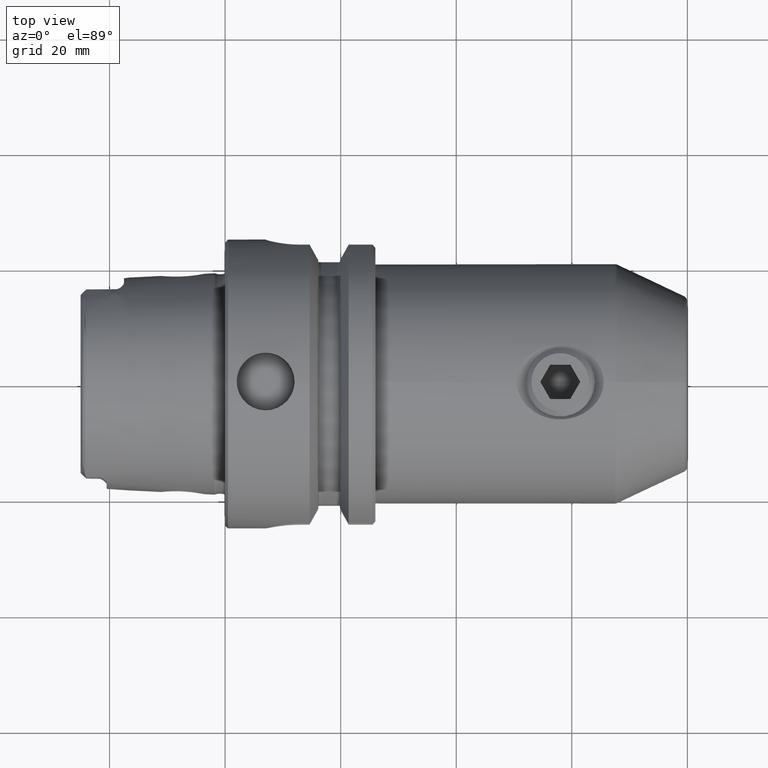
[diagram: clean part render]
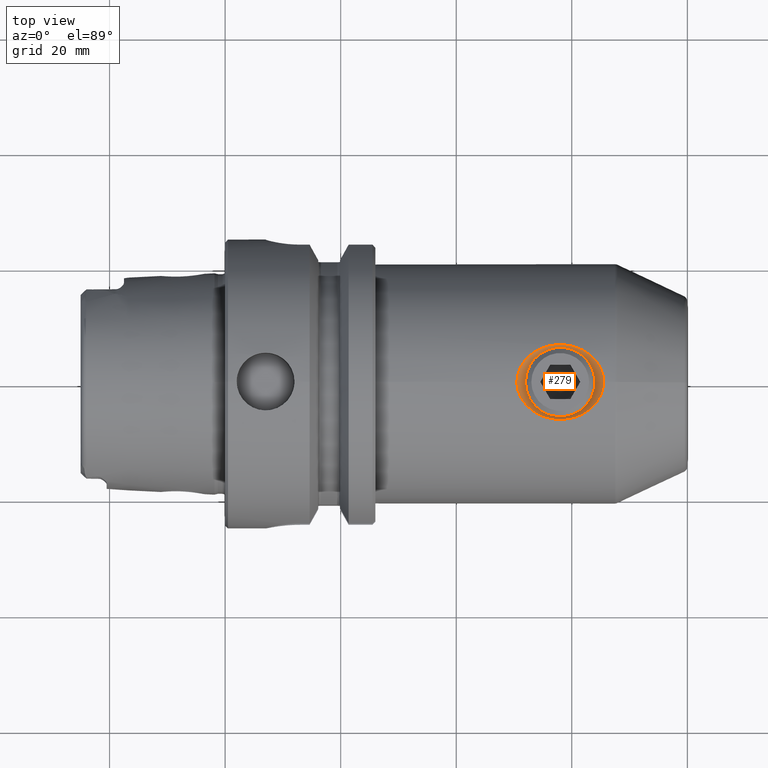
[diagram: same view with one face highlighted and labeled with its STEP entity id]
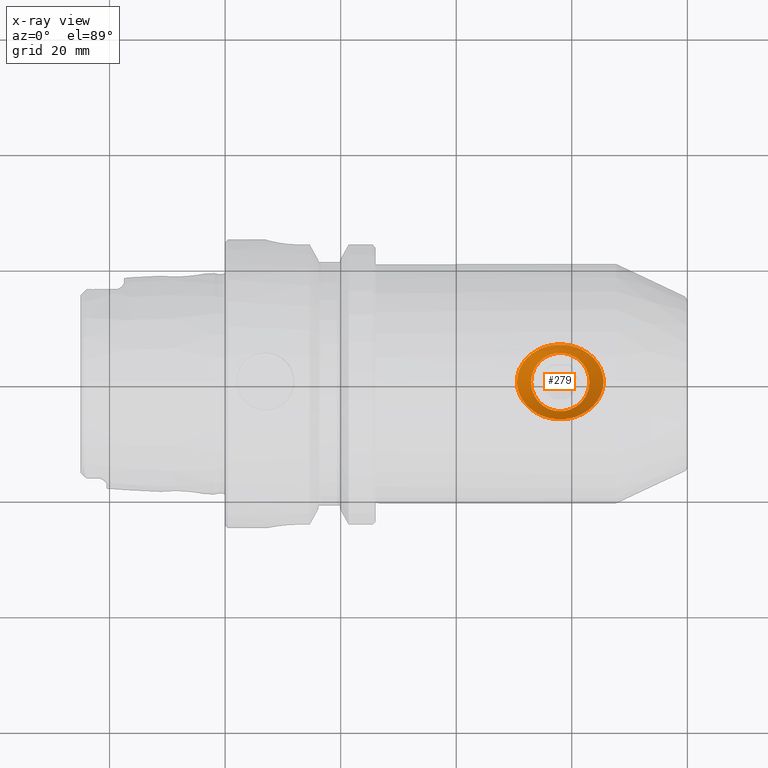
[diagram: x-ray of the same camera — body ghosted, the highlighted face saturated]
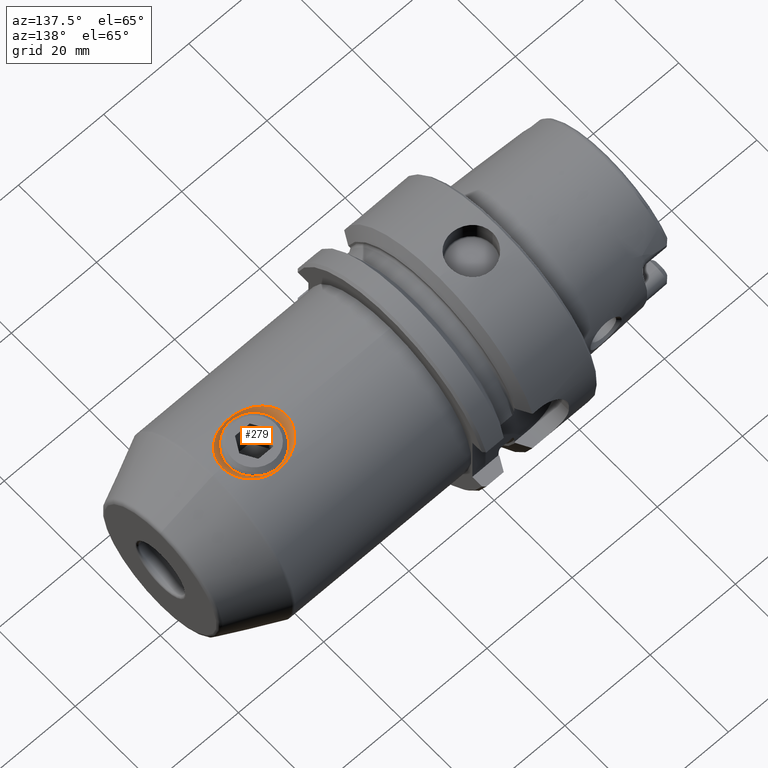
[diagram: same view with one face highlighted and labeled with its STEP entity id]
A machine part, top view. The second image highlights one B-rep face of the part: STEP entity #279.
The next image is the same camera in x-ray: the body ghosted, the highlighted face saturated — about 0% of this face is hidden behind the body in this view.
A second angle (auxiliary view) of the same face is appended — the face is thin or edge-on in the first view.
In plain terms, the highlighted conical surface has half-angle 45 deg.
Its self-contained STEP definition (entity closure, byte-faithful):
#279 = ADVANCED_FACE( '', ( #676, #677 ), #678, .F. );
#676 = FACE_OUTER_BOUND( '', #1203, .T. );
#677 = FACE_BOUND( '', #1204, .T. );
#678 = CONICAL_SURFACE( '', #1205, 707.106781186547, 0.785398163397448 );
#1203 = EDGE_LOOP( '', ( #1970 ) );
#1204 = EDGE_LOOP( '', ( #1971 ) );
#1205 = AXIS2_PLACEMENT_3D( '', #1972, #1973, #1974 );
#1970 = ORIENTED_EDGE( '', *, *, #3060, .F. );
#1971 = ORIENTED_EDGE( '', *, *, #3055, .F. );
#1972 = CARTESIAN_POINT( '', ( 58.0000000000000, 0.000000000000000, 720.356781186548 ) );
#1973 = DIRECTION( '', ( -0.000000000000000, -0.000000000000000, 1.00000000000000 ) );
#1974 = DIRECTION( '', ( 1.00000000000000, 0.000000000000000, 0.000000000000000 ) );
#3055 = EDGE_CURVE( '', #3703, #3703, #3704, .T. );
#3060 = EDGE_CURVE( '', #3711, #3711, #3712, .T. );
#3703 = VERTEX_POINT( '', #5338 );
#3704 = CIRCLE( '', #5339, 5.05300000000000 );
#3711 = VERTEX_POINT( '', #5346 );
#3712 = B_SPLINE_CURVE_WITH_KNOTS( '', 3, ( #5347, #5348, #5349, #5350, #5351, #5352, #5353, #5354, #5355, #5356, #5357, #5358, #5359, #5360, #5361, #5362, #5363, #5364, #5365, #5366, #5367, #5368, #5369, #5370, #5371, #5372, #5373, #5374, #5375, #5376, #5377, #5378, #5379, #5380, #5381, #5382, #5383, #5384, #5385, #5386, #5387, #5388, #5389, #5390, #5391, #5392, #5393, #5394, #5395, #5396, #5397, #5398, #5399, #5400, #5401, #5402, #5403, #5404, #5405, #5406, #5407, #5408, #5409, #5410, #5411, #5412, #5413, #5414, #5415, #5416, #5417, #5418, #5419, #5420, #5421, #5422, #5423, #5424, #5425, #5426 ), .UNSPECIFIED., .T., .F., ( 2, 2, 2, 2, 2, 2, 2, 2, 2, 2, 2, 2, 2, 2, 2, 2, 2, 2, 2, 2, 2, 2, 2, 2, 2, 2, 2, 2, 2, 2, 2, 2, 2, 2, 2, 2, 2, 2, 2, 2, 2, 2 ), ( -0.00136961091954119, 0.000000000000000, 0.00136961091954115, 0.00205441637931173, 0.00273922183908231, 0.00410883275862346, 0.00479363821839404, 0.00547844367816461, 0.00616324913793518, 0.00684805459770575, 0.00821766551724690, 0.00890247097701748, 0.00958727643678805, 0.0109568873563292, 0.0123264982758704, 0.0136961091954115, 0.0150657201149527, 0.0164353310344938, 0.0178049419540350, 0.0191745528735761, 0.0205441637931173, 0.0219137747126584, 0.0232833856321996, 0.0246529965517408, 0.0260226074712819, 0.0267074129310525, 0.0273922183908231, 0.0287618293103643, 0.0294466347701349, 0.0301314402299054, 0.0315010511494466, 0.0328706620689878, 0.0342402729885290, 0.0356098839080701, 0.0369794948276113, 0.0383491057471525, 0.0397187166666936, 0.0404035221264642, 0.0410883275862348, 0.0424579385057760, 0.0438275494253171, 0.0451971603448583 ), .UNSPECIFIED. );
#5338 = CARTESIAN_POINT( '', ( 63.0530000000000, 0.000000000000000, 18.3030000000000 ) );
#5339 = AXIS2_PLACEMENT_3D( '', #6343, #6344, #6345 );
#5346 = CARTESIAN_POINT( '', ( 53.6023979690213, -5.22701619019047, 20.0808565989474 ) );
#5347 = CARTESIAN_POINT( '', ( 53.9908035075223, -5.47084688845429, 20.0173878419643 ) );
#5348 = CARTESIAN_POINT( '', ( 53.2139924305203, -4.98318549192665, 20.1443253559304 ) );
#5349 = CARTESIAN_POINT( '', ( 52.8536311028944, -4.70867990123113, 20.2111172415112 ) );
#5350 = CARTESIAN_POINT( '', ( 52.3560034631978, -4.24879678078246, 20.3109535117435 ) );
#5351 = CARTESIAN_POINT( '', ( 52.1973325527191, -4.08742305407536, 20.3441750660991 ) );
#5352 = CARTESIAN_POINT( '', ( 51.8952860767660, -3.74731959062046, 20.4095585995589 ) );
#5353 = CARTESIAN_POINT( '', ( 51.7511812268098, -3.56746988144553, 20.4418946978389 ) );
#5354 = CARTESIAN_POINT( '', ( 51.3519612162404, -3.01056874582265, 20.5338884918784 ) );
#5355 = CARTESIAN_POINT( '', ( 51.1278151734844, -2.61535336515093, 20.5888898364937 ) );
#5356 = CARTESIAN_POINT( '', ( 50.8605052508132, -1.98259706571735, 20.6561564274668 ) );
#5357 = CARTESIAN_POINT( '', ( 50.7826759598934, -1.76346200529723, 20.6761123820173 ) );
#5358 = CARTESIAN_POINT( '', ( 50.6555710421010, -1.32232257929989, 20.7090049126994 ) );
#5359 = CARTESIAN_POINT( '', ( 50.6057527154156, -1.09949349349797, 20.7220745834183 ) );
#5360 = CARTESIAN_POINT( '', ( 50.5336538999921, -0.649289782128521, 20.7410627442718 ) );
#5361 = CARTESIAN_POINT( '', ( 50.5113709215926, -0.421915578754187, 20.7469821597778 ) );
#5362 = CARTESIAN_POINT( '', ( 50.4953350644945, 0.0375491796268607, 20.7512378318221 ) );
#5363 = CARTESIAN_POINT( '', ( 50.5018709560803, 0.271138188603694, 20.7494966941886 ) );
#5364 = CARTESIAN_POINT( '', ( 50.5645605699332, 0.959168173958619, 20.7328968630027 ) );
#5365 = CARTESIAN_POINT( '', ( 50.6624173881850, 1.40599944000037, 20.7069277102235 ) );
#5366 = CARTESIAN_POINT( '', ( 50.8899245661133, 2.05928993302832, 20.6487196304554 ) );
#5367 = CARTESIAN_POINT( '', ( 50.9789035145043, 2.27253655656794, 20.6262195619981 ) );
#5368 = CARTESIAN_POINT( '', ( 51.1786019123614, 2.68360635828586, 20.5767736230552 ) );
#5369 = CARTESIAN_POINT( '', ( 51.2897066732525, 2.88255952699384, 20.5497282081340 ) );
#5370 = CARTESIAN_POINT( '', ( 51.6552098408448, 3.46074787577344, 20.4630799138276 ) );
#5371 = CARTESIAN_POINT( '', ( 51.9436479120796, 3.82239076883947, 20.3975993629331 ) );
#5372 = CARTESIAN_POINT( '', ( 52.5775971129203, 4.47301080033802, 20.2648687471816 ) );
#5373 = CARTESIAN_POINT( '', ( 52.9268494726237, 4.76717154669403, 20.1967631608760 ) );
#5374 = CARTESIAN_POINT( '', ( 53.6781987360941, 5.29023505894311, 20.0661052462419 ) );
#5375 = CARTESIAN_POINT( '', ( 54.0732964302577, 5.51468925057683, 20.0047488322110 ) );
#5376 = CARTESIAN_POINT( '', ( 54.8999312100158, 5.89576345411249, 19.8957720801035 ) );
#5377 = CARTESIAN_POINT( '', ( 55.3355870833833, 6.05317415880750, 19.8478529441436 ) );
#5378 = CARTESIAN_POINT( '', ( 56.2197638152849, 6.29230542168562, 19.7733425694654 ) );
#5379 = CARTESIAN_POINT( '', ( 56.6685340479698, 6.37502426738812, 19.7464929553556 ) );
#5380 = CARTESIAN_POINT( '', ( 57.5792702444055, 6.46855087367409, 19.7160535615114 ) );
#5381 = CARTESIAN_POINT( '', ( 58.0453428316858, 6.47875492737816, 19.7126617987928 ) );
#5382 = CARTESIAN_POINT( '', ( 58.9611551635725, 6.42497014064288, 19.7302574563653 ) );
#5383 = CARTESIAN_POINT( '', ( 59.4129644591762, 6.36187398644685, 19.7509478787343 ) );
#5384 = CARTESIAN_POINT( '', ( 60.3044478157375, 6.16296222481584, 19.8139163050468 ) );
#5385 = CARTESIAN_POINT( '', ( 60.7479281989323, 6.02523280991412, 19.8567619463598 ) );
#5386 = CARTESIAN_POINT( '', ( 61.5926593147357, 5.68239428275065, 19.9575755196725 ) );
#5387 = CARTESIAN_POINT( '', ( 61.9963183665174, 5.47751326736457, 20.0155155259337 ) );
#5388 = CARTESIAN_POINT( '', ( 62.7653087985852, 4.99753714094481, 20.1407208383395 ) );
#5389 = CARTESIAN_POINT( '', ( 63.1340864660355, 4.71874761080355, 20.2087741120696 ) );
#5390 = CARTESIAN_POINT( '', ( 63.8009394297168, 4.10500072370203, 20.3423228561914 ) );
#5391 = CARTESIAN_POINT( '', ( 64.1017296404000, 3.76951867300613, 20.4081302995114 ) );
#5392 = CARTESIAN_POINT( '', ( 64.6325517218793, 3.03513924338131, 20.5301968602657 ) );
#5393 = CARTESIAN_POINT( '', ( 64.8640809993165, 2.63081187880896, 20.5868913971869 ) );
#5394 = CARTESIAN_POINT( '', ( 65.1327963627436, 2.00020515907282, 20.6544516135610 ) );
#5395 = CARTESIAN_POINT( '', ( 65.2100374574065, 1.78521126373541, 20.6742402140648 ) );
#5396 = CARTESIAN_POINT( '', ( 65.3387697016277, 1.34516280143676, 20.7075282137356 ) );
#5397 = CARTESIAN_POINT( '', ( 65.3904811442451, 1.11865547884599, 20.7210857291726 ) );
#5398 = CARTESIAN_POINT( '', ( 65.5022583203388, 0.433317019425659, 20.7505149783077 ) );
#5399 = CARTESIAN_POINT( '', ( 65.5191025986188, -0.0243578013036636, 20.7550523430022 ) );
#5400 = CARTESIAN_POINT( '', ( 65.4586699553574, -0.712034126900830, 20.7390472338519 ) );
#5401 = CARTESIAN_POINT( '', ( 65.4236791100977, -0.943023967941484, 20.7297903727161 ) );
#5402 = CARTESIAN_POINT( '', ( 65.3264763157159, -1.39398454070861, 20.7043548607806 ) );
#5403 = CARTESIAN_POINT( '', ( 65.2644139851251, -1.61473065535885, 20.6882160688014 ) );
#5404 = CARTESIAN_POINT( '', ( 65.0398695086657, -2.26353675936408, 20.6307406104114 ) );
#5405 = CARTESIAN_POINT( '', ( 64.8361752008327, -2.68238071594410, 20.5796023751028 ) );
#5406 = CARTESIAN_POINT( '', ( 64.3488698782894, -3.45532354422915, 20.4640157209503 ) );
#5407 = CARTESIAN_POINT( '', ( 64.0650549453033, -3.81268364649328, 20.3994817024776 ) );
#5408 = CARTESIAN_POINT( '', ( 63.4249083064193, -4.47120145470159, 20.2653341415687 ) );
#5409 = CARTESIAN_POINT( '', ( 63.0769712429224, -4.76394256904546, 20.1975093823495 ) );
#5410 = CARTESIAN_POINT( '', ( 62.3304810312880, -5.28475218307895, 20.0675341887014 ) );
#5411 = CARTESIAN_POINT( '', ( 61.9283819443567, -5.51388472958521, 20.0049767767940 ) );
#5412 = CARTESIAN_POINT( '', ( 61.0992799476873, -5.89615787244691, 19.8956614113329 ) );
#5413 = CARTESIAN_POINT( '', ( 60.6705453374567, -6.05119157844135, 19.8484607848928 ) );
#5414 = CARTESIAN_POINT( '', ( 59.7850400371395, -6.29132624003486, 19.7736574560670 ) );
#5415 = CARTESIAN_POINT( '', ( 59.3271245135907, -6.37572119423649, 19.7462673715170 ) );
#5416 = CARTESIAN_POINT( '', ( 58.4157439698710, -6.46880920828406, 19.7159682308754 ) );
#5417 = CARTESIAN_POINT( '', ( 57.9582426599174, -6.47884910521817, 19.7126307975378 ) );
#5418 = CARTESIAN_POINT( '', ( 57.2692406703641, -6.43855885707440, 19.7258120115762 ) );
#5419 = CARTESIAN_POINT( '', ( 57.0380120809925, -6.41566751494700, 19.7332928292418 ) );
#5420 = CARTESIAN_POINT( '', ( 56.5810485870345, -6.35154034104448, 19.7540266994615 ) );
#5421 = CARTESIAN_POINT( '', ( 56.3553782390094, -6.31043215389269, 19.7672379321309 ) );
#5422 = CARTESIAN_POINT( '', ( 55.6866032321562, -6.16045736626907, 19.8146981500048 ) );
#5423 = CARTESIAN_POINT( '', ( 55.2516658493352, -6.02518565370252, 19.8567826418124 ) );
#5424 = CARTESIAN_POINT( '', ( 54.4041574324468, -5.68098424251440, 19.9579832919578 ) );
#5425 = CARTESIAN_POINT( '', ( 53.9908035075223, -5.47084688845429, 20.0173878419643 ) );
#5426 = CARTESIAN_POINT( '', ( 53.2139924305203, -4.98318549192665, 20.1443253559304 ) );
#6343 = CARTESIAN_POINT( '', ( 58.0000000000000, 0.000000000000000, 18.3030000000000 ) );
#6344 = DIRECTION( '', ( 0.000000000000000, 0.000000000000000, 1.00000000000000 ) );
#6345 = DIRECTION( '', ( 1.00000000000000, 0.000000000000000, 0.000000000000000 ) );